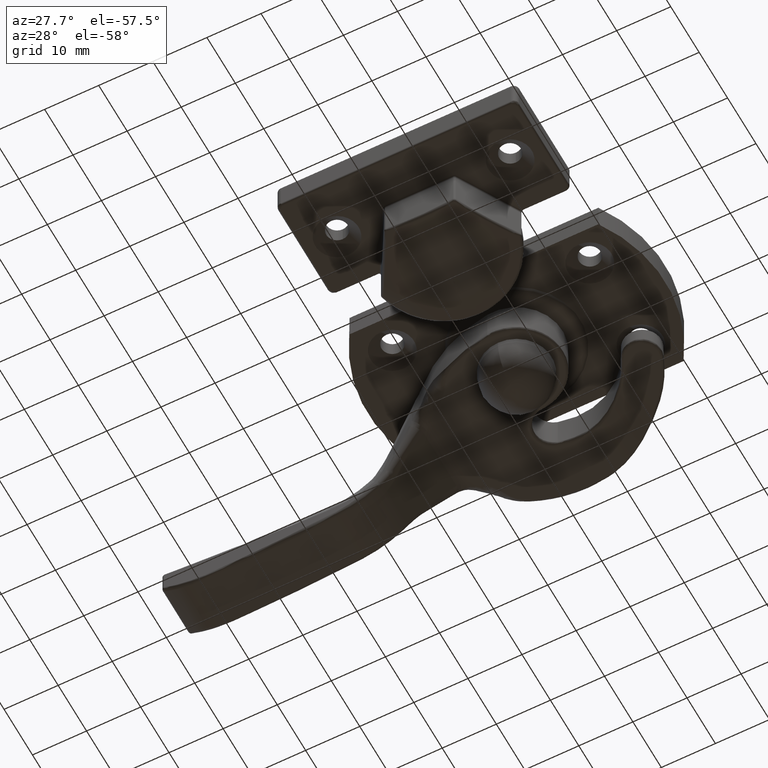
[diagram: clean part render]
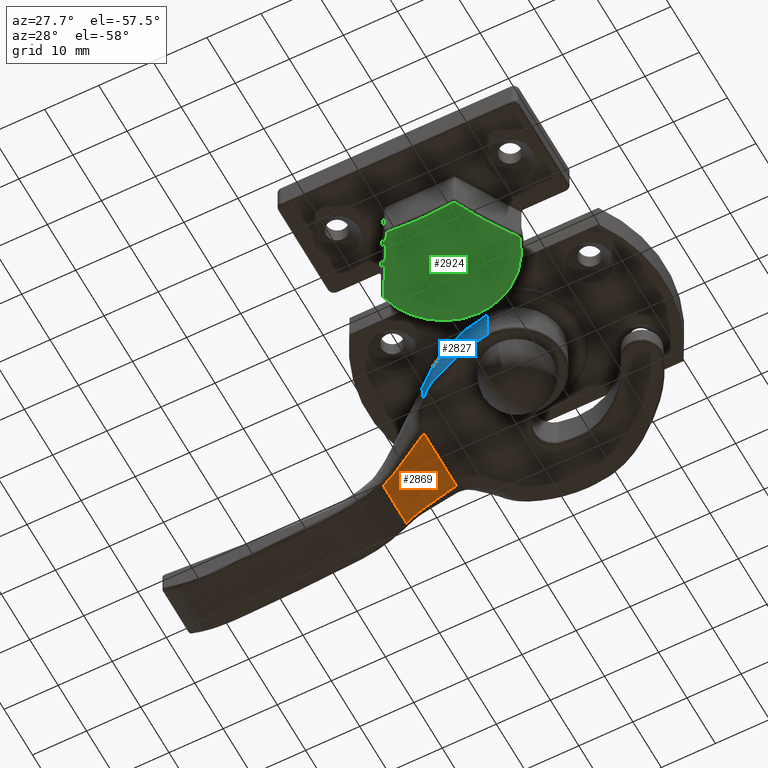
[diagram: same view with three faces highlighted in distinct colors, each labeled with its STEP entity id]
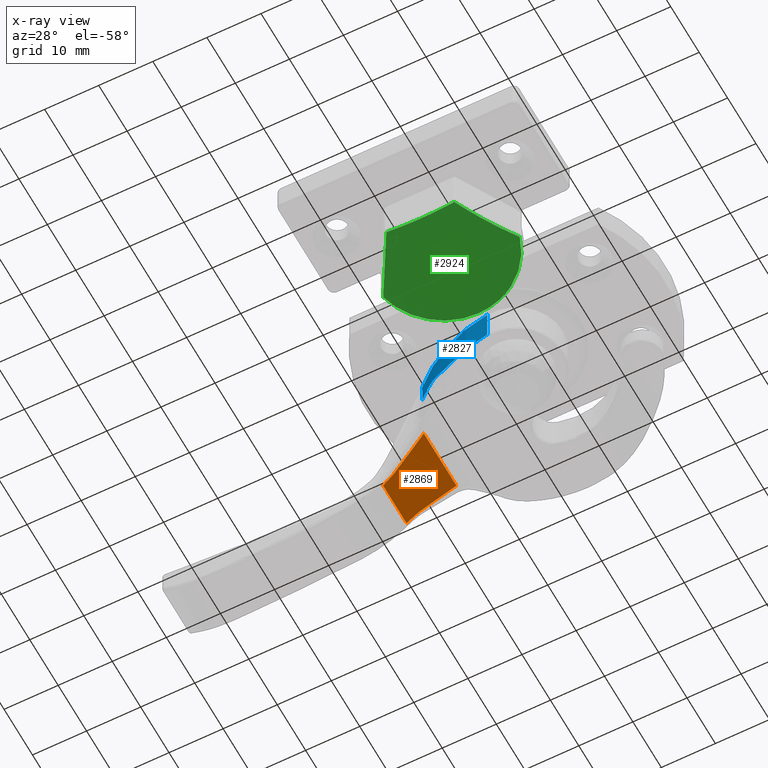
[diagram: x-ray of the same camera — body ghosted, the three highlighted faces saturated]
A machine part, auxiliary view with three faces highlighted in distinct colors.
The next image is the same camera in x-ray (body ghosted, the three faces saturated) — at least one of them is partly hidden behind the body in this view.
Their STEP definitions:

[orange] entity #2869 — the highlighted planar face has unit normal (0.6783, 0, -0.7348).
#92=LINE('',#5624,#229);
#107=LINE('',#6210,#244);
#229=VECTOR('',#3316,11.4414916206582);
#244=VECTOR('',#3359,8.21417600446663);
#360=PLANE('',#3032);
#416=B_SPLINE_CURVE_WITH_KNOTS('',3,(#4210,#4211,#4212,#4213),
 .UNSPECIFIED.,.F.,.F.,(4,4),(-20.6515753990987,-20.0982511206205),
 .UNSPECIFIED.);
#419=B_SPLINE_CURVE_WITH_KNOTS('',3,(#4255,#4256,#4257,#4258),
 .UNSPECIFIED.,.F.,.F.,(4,4),(-20.0982511206205,-19.5027915202098),
 .UNSPECIFIED.);
#472=B_SPLINE_CURVE_WITH_KNOTS('',3,(#5273,#5274,#5275,#5276),
 .UNSPECIFIED.,.F.,.F.,(4,4),(-5.20652326443084,-4.64344864443567),
 .UNSPECIFIED.);
#477=B_SPLINE_CURVE_WITH_KNOTS('',3,(#5330,#5331,#5332,#5333),
 .UNSPECIFIED.,.F.,.F.,(4,4),(-4.64344864443567,-4.05487288522677),
 .UNSPECIFIED.);
#722=FACE_OUTER_BOUND('',#911,.T.);
#911=EDGE_LOOP('',(#2224,#2225,#2226,#2227,#2228,#2229));
#1193=VERTEX_POINT('',#4153);
#1195=VERTEX_POINT('',#4197);
#1197=VERTEX_POINT('',#4242);
#1234=VERTEX_POINT('',#5264);
#1235=VERTEX_POINT('',#5272);
#1237=VERTEX_POINT('',#5317);
#1472=EDGE_CURVE('',#1193,#1195,#416,.T.);
#1475=EDGE_CURVE('',#1195,#1197,#419,.T.);
#1528=EDGE_CURVE('',#1234,#1235,#472,.T.);
#1533=EDGE_CURVE('',#1235,#1237,#477,.T.);
#1578=EDGE_CURVE('',#1197,#1234,#92,.T.);
#1628=EDGE_CURVE('',#1237,#1193,#107,.T.);
#2224=ORIENTED_EDGE('',*,*,#1472,.F.);
#2225=ORIENTED_EDGE('',*,*,#1628,.F.);
#2226=ORIENTED_EDGE('',*,*,#1533,.F.);
#2227=ORIENTED_EDGE('',*,*,#1528,.F.);
#2228=ORIENTED_EDGE('',*,*,#1578,.F.);
#2229=ORIENTED_EDGE('',*,*,#1475,.F.);
#2869=ADVANCED_FACE('',(#722),#360,.T.);
#3032=AXIS2_PLACEMENT_3D('',#6218,#3372,#3373);
#3316=DIRECTION('',(0.,0.,-1.));
#3359=DIRECTION('',(0.,0.,1.));
#3372=DIRECTION('center_axis',(-0.678280102733066,0.734803444627488,0.));
#3373=DIRECTION('ref_axis',(-0.734803444627488,-0.678280102733066,0.));
#4153=CARTESIAN_POINT('',(26.973743176669,15.2449937015406,-4.39103242996015));
#4197=CARTESIAN_POINT('',(22.9416428688029,11.523054955818,-3.83807787177635));
#4210=CARTESIAN_POINT('Ctrl Pts',(26.973743176669,15.2449937015406,-4.39103242996015));
#4211=CARTESIAN_POINT('Ctrl Pts',(25.6194071388743,13.9948373589609,-4.40469753673714));
#4212=CARTESIAN_POINT('Ctrl Pts',(24.2659125625883,12.7454577500815,-4.20748698970253));
#4213=CARTESIAN_POINT('Ctrl Pts',(22.9416428688029,11.523054955818,-3.83807787177635));
#4242=CARTESIAN_POINT('',(18.6491850732809,7.56078622149005,-2.85819649492266));
#4255=CARTESIAN_POINT('Ctrl Pts',(22.9416428688029,11.523054955818,-3.83807787177635));
#4256=CARTESIAN_POINT('Ctrl Pts',(21.5165308081753,10.2075668998541,-3.44053846440866));
#4257=CARTESIAN_POINT('Ctrl Pts',(20.0839778613096,8.88521033351651,-3.1128042924226));
#4258=CARTESIAN_POINT('Ctrl Pts',(18.6491850732809,7.56078622149006,-2.85819649492266));
#5264=CARTESIAN_POINT('',(18.6491850732809,7.56078622149004,-14.2996881155809));
#5272=CARTESIAN_POINT('',(22.6931416846052,11.2936692473279,-13.2779446631124));
#5273=CARTESIAN_POINT('Ctrl Pts',(18.6491850732809,7.56078622149004,-14.2996881155809));
#5274=CARTESIAN_POINT('Ctrl Pts',(20.001514260389,8.80909008651292,-14.0230689828679));
#5275=CARTESIAN_POINT('Ctrl Pts',(21.3513798705076,10.0551198804686,-13.686410415452));
#5276=CARTESIAN_POINT('Ctrl Pts',(22.6931416846052,11.2936692473279,-13.2779446631124));
#5317=CARTESIAN_POINT('',(26.9737431767921,15.2449937016543,-12.6052084344268));
#5330=CARTESIAN_POINT('Ctrl Pts',(22.6931416846052,11.2936692473279,-13.2779446631124));
#5331=CARTESIAN_POINT('Ctrl Pts',(24.0956706751976,12.5883113924901,-12.85097986705));
#5332=CARTESIAN_POINT('Ctrl Pts',(25.5331951467217,13.9152570585124,-12.6102066065319));
#5333=CARTESIAN_POINT('Ctrl Pts',(26.9737431767921,15.2449937016543,-12.6052084344273));
#5624=CARTESIAN_POINT('',(18.6491850732809,7.56078622149004,-8.5));
#6210=CARTESIAN_POINT('',(26.9737431766422,15.2449937015159,-8.5));
#6218=CARTESIAN_POINT('Origin',(30.5,18.5,-8.5));

[blue] entity #2827 — the highlighted cylindrical surface (partial cylindrical patch) has radius 27.8333 mm, axis along (-0, -0, -1).
#80=LINE('',#5546,#217);
#81=LINE('',#5550,#218);
#217=VECTOR('',#3262,1.08462511016803);
#218=VECTOR('',#3267,6.00000000000015);
#429=B_SPLINE_CURVE_WITH_KNOTS('',3,(#4463,#4464,#4465,#4466,#4467,#4468,
#4469,#4470,#4471,#4472,#4473,#4474),.UNSPECIFIED.,.F.,.F.,(4,1,1,1,1,1,
1,1,1,4),(17.1500457545953,17.4027454031803,17.6554450517653,17.9081447003503,
18.0344945246428,18.1608443489353,18.2871941732277,18.4135439975202,18.6662436461052,
18.9189432946902),.UNSPECIFIED.);
#492=B_SPLINE_CURVE_WITH_KNOTS('',3,(#5553,#5554,#5555,#5556,#5557),
 .UNSPECIFIED.,.F.,.F.,(4,1,4),(-2.26105558734628,-1.98802227356604,-1.96321935408125),
 .UNSPECIFIED.);
#680=FACE_OUTER_BOUND('',#868,.T.);
#868=EDGE_LOOP('',(#2016,#2017,#2018,#2019,#2020));
#1064=CIRCLE('',#2994,27.8333333333335);
#1203=VERTEX_POINT('',#4433);
#1206=VERTEX_POINT('',#4455);
#1247=VERTEX_POINT('',#5545);
#1248=VERTEX_POINT('',#5549);
#1249=VERTEX_POINT('',#5551);
#1485=EDGE_CURVE('',#1206,#1203,#429,.T.);
#1550=EDGE_CURVE('',#1203,#1247,#80,.F.);
#1552=EDGE_CURVE('',#1248,#1206,#81,.T.);
#1553=EDGE_CURVE('',#1248,#1249,#1064,.T.);
#1554=EDGE_CURVE('',#1247,#1249,#492,.T.);
#2016=ORIENTED_EDGE('',*,*,#1485,.F.);
#2017=ORIENTED_EDGE('',*,*,#1552,.F.);
#2018=ORIENTED_EDGE('',*,*,#1553,.T.);
#2019=ORIENTED_EDGE('',*,*,#1554,.F.);
#2020=ORIENTED_EDGE('',*,*,#1550,.F.);
#2734=CYLINDRICAL_SURFACE('',#2993,27.8333333333335);
#2827=ADVANCED_FACE('',(#680),#2734,.T.);
#2993=AXIS2_PLACEMENT_3D('',#5548,#3265,#3266);
#2994=AXIS2_PLACEMENT_3D('',#5552,#3268,#3269);
#3262=DIRECTION('',(0.,1.,0.));
#3265=DIRECTION('center_axis',(0.,1.,0.));
#3266=DIRECTION('ref_axis',(0.799999999999999,0.,0.600000000000002));
#3267=DIRECTION('',(0.,1.,0.));
#3268=DIRECTION('center_axis',(8.96432846842059E-32,1.,0.));
#3269=DIRECTION('ref_axis',(0.799999999999999,0.,0.600000000000002));
#4433=CARTESIAN_POINT('',(16.8509766607735,4.03565924499927,1.0289435722488));
#4455=CARTESIAN_POINT('',(0.996551724137953,6.00000000000014,8.44137931034484));
#4463=CARTESIAN_POINT('Ctrl Pts',(0.996553518154804,6.00000000000015,8.44137909855112));
#4464=CARTESIAN_POINT('Ctrl Pts',(1.84929828050329,6.00000000512943,8.34070778640715));
#4465=CARTESIAN_POINT('Ctrl Pts',(3.54189475067144,6.00365713684961,8.06132130042289));
#4466=CARTESIAN_POINT('Ctrl Pts',(6.03684156333571,5.99176274515822,7.40725412265686));
#4467=CARTESIAN_POINT('Ctrl Pts',(8.04921179521744,6.01511575428809,6.67650334815204));
#4468=CARTESIAN_POINT('Ctrl Pts',(9.62458663300389,5.9613281355958,5.97631999607517));
#4469=CARTESIAN_POINT('Ctrl Pts',(10.7461394977966,5.69854895393656,5.4147279212985));
#4470=CARTESIAN_POINT('Ctrl Pts',(11.7508899936126,5.25696834392684,4.85376763946061));
#4471=CARTESIAN_POINT('Ctrl Pts',(12.9702513970789,4.54579640340255,4.11358724934454));
#4472=CARTESIAN_POINT('Ctrl Pts',(14.7431346978594,3.94444620117284,2.88918493393307));
#4473=CARTESIAN_POINT('Ctrl Pts',(16.1816885567516,3.98546962805473,1.66146356570725));
#4474=CARTESIAN_POINT('Ctrl Pts',(16.8509766607735,4.03565924499927,1.0289435722488));
#5545=CARTESIAN_POINT('',(16.8509766607735,2.95103413483124,1.02894357224879));
#5546=CARTESIAN_POINT('',(16.8509766607735,-4.44089209850063E-15,1.02894357224879));
#5548=CARTESIAN_POINT('Origin',(-2.26666666666674,-4.44089209850063E-15,
-19.2000000000001));
#5549=CARTESIAN_POINT('',(0.996551724137955,-4.44089209850063E-15,8.44137931034483));
#5550=CARTESIAN_POINT('',(0.996551724137957,-4.44089209850063E-15,8.44137931034484));
#5551=CARTESIAN_POINT('',(17.085109297944,1.43288159115684E-14,0.805079641430123));
#5552=CARTESIAN_POINT('Origin',(-2.26666666666674,-4.44089209850063E-15,
-19.2000000000001));
#5553=CARTESIAN_POINT('Ctrl Pts',(16.8509766607736,2.95103413483123,1.02894357224878));
#5554=CARTESIAN_POINT('Ctrl Pts',(16.8509766607736,2.0409230888971,1.02894357224878));
#5555=CARTESIAN_POINT('Ctrl Pts',(16.9038428813633,1.02684776063461,0.979991214057546));
#5556=CARTESIAN_POINT('Ctrl Pts',(17.0712876035002,0.0787175207032501,0.818474216294738));
#5557=CARTESIAN_POINT('Ctrl Pts',(17.0860373193644,0.000331592864787553,
0.804216649697458));

[green] entity #2924 — the highlighted face is a freeform B-spline surface patch.
#23=(
BOUNDED_SURFACE()
B_SPLINE_SURFACE(2,2,((#6649,#6650,#6651,#6652,#6653,#6654,#6655,#6656,
#6657),(#6658,#6659,#6660,#6661,#6662,#6663,#6664,#6665,#6666),(#6667,#6668,
#6669,#6670,#6671,#6672,#6673,#6674,#6675)),.UNSPECIFIED.,.F.,.T.,.F.)
B_SPLINE_SURFACE_WITH_KNOTS((3,3),(3,2,2,2,3),(-1.53666333069181,-1.25885074568134),
(-3.14159265358979,-1.5707963267949,0.,1.5707963267949,3.14159265358979),
 .UNSPECIFIED.)
GEOMETRIC_REPRESENTATION_ITEM()
RATIONAL_B_SPLINE_SURFACE(((1.,0.707106781186548,1.,0.707106781186548,1.,
0.707106781186548,1.,0.707106781186548,1.),(0.990368023286337,0.700295945136086,
0.990368023286337,0.700295945136086,0.990368023286337,0.700295945136086,
0.990368023286337,0.700295945136086,0.990368023286337),(1.,0.707106781186548,
1.,0.707106781186548,1.,0.707106781186548,1.,0.707106781186548,1.)))
REPRESENTATION_ITEM('')
SURFACE()
);
#40=(
BOUNDED_CURVE()
B_SPLINE_CURVE(2,(#6677,#6678,#6679),.UNSPECIFIED.,.F.,.F.)
B_SPLINE_CURVE_WITH_KNOTS((3,3),(1.32630013095051,1.53666333069181),
 .UNSPECIFIED.)
CURVE()
GEOMETRIC_REPRESENTATION_ITEM()
RATIONAL_B_SPLINE_CURVE((0.996458482823591,0.99270654552513,1.))
REPRESENTATION_ITEM('')
);
#536=B_SPLINE_CURVE_WITH_KNOTS('',3,(#6477,#6478,#6479,#6480),
 .UNSPECIFIED.,.F.,.F.,(4,4),(-1.25526453348636,0.),.UNSPECIFIED.);
#537=B_SPLINE_CURVE_WITH_KNOTS('',3,(#6524,#6525,#6526,#6527,#6528,#6529),
 .UNSPECIFIED.,.F.,.F.,(4,1,1,4),(-3.34137006731676,-2.86403148627151,-2.38669290522626,
-1.67023595845186),.UNSPECIFIED.);
#538=B_SPLINE_CURVE_WITH_KNOTS('',3,(#6531,#6532,#6533,#6534,#6535,#6536),
 .UNSPECIFIED.,.F.,.F.,(4,1,1,4),(-1.67023595845186,-1.43201574313576,-0.477338581045252,
0.),.UNSPECIFIED.);
#541=B_SPLINE_CURVE_WITH_KNOTS('',3,(#6578,#6579,#6580,#6581),
 .UNSPECIFIED.,.F.,.F.,(4,4),(-1.25526453348636,0.),.UNSPECIFIED.);
#543=B_SPLINE_CURVE_WITH_KNOTS('',3,(#6612,#6613,#6614,#6615),
 .UNSPECIFIED.,.F.,.F.,(4,4),(-1.24700316587745,0.),.UNSPECIFIED.);
#777=FACE_OUTER_BOUND('',#994,.T.);
#994=EDGE_LOOP('',(#2454,#2455,#2456,#2457,#2458,#2459,#2460));
#1346=VERTEX_POINT('',#6467);
#1349=VERTEX_POINT('',#6475);
#1351=VERTEX_POINT('',#6523);
#1352=VERTEX_POINT('',#6530);
#1354=VERTEX_POINT('',#6569);
#1367=VERTEX_POINT('',#6676);
#1716=EDGE_CURVE('',#1349,#1346,#536,.T.);
#1718=EDGE_CURVE('',#1346,#1351,#537,.T.);
#1719=EDGE_CURVE('',#1351,#1352,#538,.T.);
#1726=EDGE_CURVE('',#1352,#1354,#541,.T.);
#1731=EDGE_CURVE('',#1354,#1349,#543,.T.);
#1746=EDGE_CURVE('',#1351,#1367,#40,.T.);
#2454=ORIENTED_EDGE('',*,*,#1716,.F.);
#2455=ORIENTED_EDGE('',*,*,#1731,.F.);
#2456=ORIENTED_EDGE('',*,*,#1726,.F.);
#2457=ORIENTED_EDGE('',*,*,#1719,.F.);
#2458=ORIENTED_EDGE('',*,*,#1746,.T.);
#2459=ORIENTED_EDGE('',*,*,#1746,.F.);
#2460=ORIENTED_EDGE('',*,*,#1718,.F.);
#2924=ADVANCED_FACE('',(#777),#23,.F.);
#6467=CARTESIAN_POINT('',(9.82011222548823,12.616089762135,12.2948335621637));
#6475=CARTESIAN_POINT('',(-1.14084627898419,6.28783303087431,12.3079112972986));
#6477=CARTESIAN_POINT('Ctrl Pts',(-1.14084627898418,6.28783303087435,12.3079112972986));
#6478=CARTESIAN_POINT('Ctrl Pts',(2.47845724673189,8.38030711308246,12.9791661877204));
#6479=CARTESIAN_POINT('Ctrl Pts',(6.19953190480692,10.5286229453877,12.9744654362294));
#6480=CARTESIAN_POINT('Ctrl Pts',(9.82011222548823,12.616089762135,12.2948335621637));
#6523=CARTESIAN_POINT('',(19.3710748038256,-6.93889390390723E-17,13.1504896139707));
#6524=CARTESIAN_POINT('Ctrl Pts',(9.82043142433763,12.6171150019081,12.2945010062514));
#6525=CARTESIAN_POINT('Ctrl Pts',(11.3649752519095,12.181552545179,12.4321872183355));
#6526=CARTESIAN_POINT('Ctrl Pts',(14.3051456719871,10.7242479718979,12.6944448576375));
#6527=CARTESIAN_POINT('Ctrl Pts',(18.2203588000814,6.49297261271096,13.0460174233231));
#6528=CARTESIAN_POINT('Ctrl Pts',(19.3601839093307,2.43218320640826,13.1489579981819));
#6529=CARTESIAN_POINT('Ctrl Pts',(19.370953376455,-7.45633618320918E-7,
13.1500077985088));
#6530=CARTESIAN_POINT('',(9.82011222548818,-12.616089762135,12.2948335621637));
#6531=CARTESIAN_POINT('Ctrl Pts',(19.369815115353,-4.94997449557166E-7,
13.1502931863688));
#6532=CARTESIAN_POINT('Ctrl Pts',(19.3733955528726,-0.808627258781245,13.1506422321988));
#6533=CARTESIAN_POINT('Ctrl Pts',(19.0186159672208,-4.85514584864727,13.1187713919747));
#6534=CARTESIAN_POINT('Ctrl Pts',(15.8100294078288,-10.0130163377475,12.8289537034563));
#6535=CARTESIAN_POINT('Ctrl Pts',(11.3645288528117,-12.1805553986865,12.4325122127387));
#6536=CARTESIAN_POINT('Ctrl Pts',(9.82011222548818,-12.616089762135,12.2948335621637));
#6569=CARTESIAN_POINT('',(-1.14084627898416,-6.28783303087436,12.3079112972986));
#6578=CARTESIAN_POINT('Ctrl Pts',(9.82011222548823,-12.616089762135,12.2948335621637));
#6579=CARTESIAN_POINT('Ctrl Pts',(6.19953190480693,-10.5286229453877,12.9744654362294));
#6580=CARTESIAN_POINT('Ctrl Pts',(2.47845724673189,-8.38030711308247,12.9791661877204));
#6581=CARTESIAN_POINT('Ctrl Pts',(-1.14084627898417,-6.28783303087437,12.3079112972986));
#6612=CARTESIAN_POINT('Ctrl Pts',(-1.14084627898418,-6.28783303087432,12.3079112972986));
#6613=CARTESIAN_POINT('Ctrl Pts',(-1.14331388027646,-2.13470159379481,12.9747484070366));
#6614=CARTESIAN_POINT('Ctrl Pts',(-1.14331388027647,2.13470159379479,12.9747484070366));
#6615=CARTESIAN_POINT('Ctrl Pts',(-1.14084627898419,6.28783303087431,12.3079112972986));
#6649=CARTESIAN_POINT('Ctrl Pts',(9.74999999999999,0.,14.5));
#6650=CARTESIAN_POINT('Ctrl Pts',(9.74999999999999,3.33066907387547E-15,
14.5));
#6651=CARTESIAN_POINT('Ctrl Pts',(9.74999999999999,3.33066907387547E-15,
14.5));
#6652=CARTESIAN_POINT('Ctrl Pts',(9.75,3.33066907387547E-15,14.5));
#6653=CARTESIAN_POINT('Ctrl Pts',(9.75,0.,14.5));
#6654=CARTESIAN_POINT('Ctrl Pts',(9.75,-3.33066907387547E-15,14.5));
#6655=CARTESIAN_POINT('Ctrl Pts',(9.74999999999999,-3.33066907387547E-15,
14.5));
#6656=CARTESIAN_POINT('Ctrl Pts',(9.74999999999999,-3.33066907387547E-15,
14.5));
#6657=CARTESIAN_POINT('Ctrl Pts',(9.74999999999999,0.,14.5));
#6658=CARTESIAN_POINT('Ctrl Pts',(16.2122907442292,0.,14.279336953219));
#6659=CARTESIAN_POINT('Ctrl Pts',(16.2122907442292,-6.46229074422919,14.279336953219));
#6660=CARTESIAN_POINT('Ctrl Pts',(9.74999999999999,-6.4622907442292,14.279336953219));
#6661=CARTESIAN_POINT('Ctrl Pts',(3.2877092557708,-6.46229074422919,14.279336953219));
#6662=CARTESIAN_POINT('Ctrl Pts',(3.2877092557708,0.,14.279336953219));
#6663=CARTESIAN_POINT('Ctrl Pts',(3.2877092557708,6.46229074422919,14.279336953219));
#6664=CARTESIAN_POINT('Ctrl Pts',(9.74999999999999,6.4622907442292,14.279336953219));
#6665=CARTESIAN_POINT('Ctrl Pts',(16.2122907442292,6.46229074422919,14.279336953219));
#6666=CARTESIAN_POINT('Ctrl Pts',(16.2122907442292,0.,14.279336953219));
#6667=CARTESIAN_POINT('Ctrl Pts',(22.3662845802721,0.,12.2948335621637));
#6668=CARTESIAN_POINT('Ctrl Pts',(22.3662845802721,-12.6162845802721,12.2948335621637));
#6669=CARTESIAN_POINT('Ctrl Pts',(9.74999999999999,-12.6162845802721,12.2948335621637));
#6670=CARTESIAN_POINT('Ctrl Pts',(-2.86628458027208,-12.6162845802721,12.2948335621637));
#6671=CARTESIAN_POINT('Ctrl Pts',(-2.86628458027208,0.,12.2948335621637));
#6672=CARTESIAN_POINT('Ctrl Pts',(-2.86628458027208,12.6162845802721,12.2948335621637));
#6673=CARTESIAN_POINT('Ctrl Pts',(9.74999999999999,12.6162845802721,12.2948335621637));
#6674=CARTESIAN_POINT('Ctrl Pts',(22.3662845802721,12.6162845802721,12.2948335621637));
#6675=CARTESIAN_POINT('Ctrl Pts',(22.3662845802721,0.,12.2948335621637));
#6676=CARTESIAN_POINT('',(9.74999999999999,0.,14.5));
#6677=CARTESIAN_POINT('Ctrl Pts',(19.3710748038256,-6.93889390390723E-17,
13.1504896139707));
#6678=CARTESIAN_POINT('Ctrl Pts',(14.6318009772807,-6.93889390390723E-17,
14.3333047645083));
#6679=CARTESIAN_POINT('Ctrl Pts',(9.74999999999999,0.,14.5));